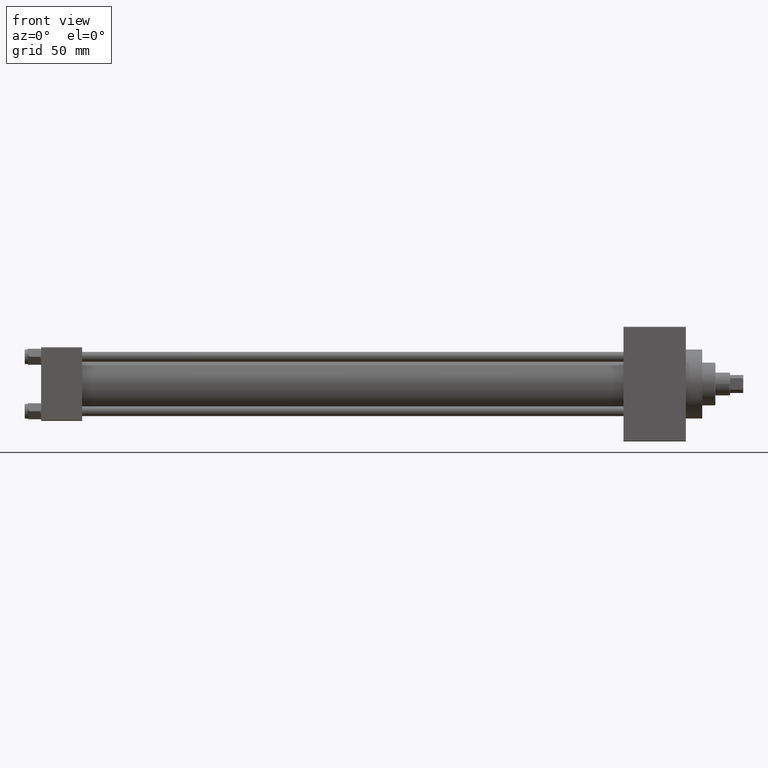
[diagram: clean part render]
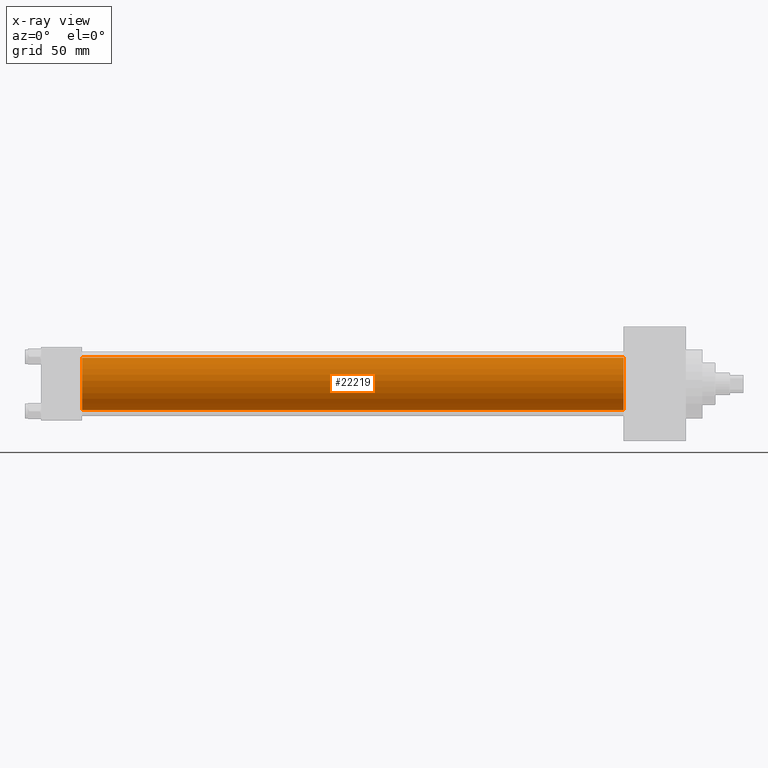
[diagram: x-ray — body ghosted, one internal face saturated and labeled with its STEP entity id]
A machine part, front view, then the same camera in x-ray: the body is ghosted and one INTERNAL B-rep face — a face not visible from any outside direction — is saturated and labeled: STEP entity #22219.
In plain terms, the highlighted cylindrical surface (edge-blend (fillet) strip) has radius 16 mm, axis along (-1, -0, -0).
Its self-contained STEP definition (entity closure, byte-faithful):
#188 = CARTESIAN_POINT ( 'NONE',  ( 25.00000000000000000, -6.426503353294456087E-16, -16.00000000000000000 ) ) ;
#2545 = CARTESIAN_POINT ( 'NONE',  ( 25.00000000000000000, -2.602085213965210642E-15, 16.00000000000000000 ) ) ;
#6779 = DIRECTION ( 'NONE',  ( 1.000000000000000000, 0.000000000000000000, 0.000000000000000000 ) ) ;
#8196 = CARTESIAN_POINT ( 'NONE',  ( 355.0000000000000568, -2.602085213965210642E-15, 16.00000000000000000 ) ) ;
#8291 = ORIENTED_EDGE ( 'NONE', *, *, #33902, .F. ) ;
#8516 = CARTESIAN_POINT ( 'NONE',  ( 355.0000000000000568, -6.426503353294456087E-16, -16.00000000000000000 ) ) ;
#9045 = DIRECTION ( 'NONE',  ( 1.000000000000000000, 0.000000000000000000, 0.000000000000000000 ) ) ;
#9282 = DIRECTION ( 'NONE',  ( 0.000000000000000000, 0.000000000000000000, -1.000000000000000000 ) ) ;
#10294 = CYLINDRICAL_SURFACE ( 'NONE', #15280, 16.00000000000000000 ) ;
#12175 = VERTEX_POINT ( 'NONE', #2545 ) ;
#13508 = ORIENTED_EDGE ( 'NONE', *, *, #15070, .T. ) ;
#14024 = EDGE_LOOP ( 'NONE', ( #22967, #13508, #39789, #8291 ) ) ;
#14123 = CARTESIAN_POINT ( 'NONE',  ( 355.0000000000000568, -2.602085213965210642E-15, 0.000000000000000000 ) ) ;
#14906 = VERTEX_POINT ( 'NONE', #8516 ) ;
#15070 = EDGE_CURVE ( 'NONE', #14906, #31252, #47021, .T. ) ;
#15280 = AXIS2_PLACEMENT_3D ( 'NONE', #14123, #28738, #43320 ) ;
#15362 = VERTEX_POINT ( 'NONE', #41868 ) ;
#20918 = EDGE_CURVE ( 'NONE', #12175, #31252, #39712, .T. ) ;
#21201 = DIRECTION ( 'NONE',  ( 0.000000000000000000, 0.000000000000000000, -1.000000000000000000 ) ) ;
#22219 = ADVANCED_FACE ( 'NONE', ( #28506 ), #10294, .F. ) ;
#22967 = ORIENTED_EDGE ( 'NONE', *, *, #34776, .T. ) ;
#28155 = CARTESIAN_POINT ( 'NONE',  ( 355.0000000000000568, -2.602085213965210642E-15, 0.000000000000000000 ) ) ;
#28506 = FACE_OUTER_BOUND ( 'NONE', #14024, .T. ) ;
#28738 = DIRECTION ( 'NONE',  ( -1.000000000000000000, -0.000000000000000000, -0.000000000000000000 ) ) ;
#29354 = CIRCLE ( 'NONE', #30908, 16.00000000000000000 ) ;
#29984 = DIRECTION ( 'NONE',  ( -1.000000000000000000, -0.000000000000000000, -0.000000000000000000 ) ) ;
#30608 = CARTESIAN_POINT ( 'NONE',  ( 25.00000000000000000, -2.602085213965210642E-15, 0.000000000000000000 ) ) ;
#30908 = AXIS2_PLACEMENT_3D ( 'NONE', #28155, #6779, #21201 ) ;
#31252 = VERTEX_POINT ( 'NONE', #188 ) ;
#32449 = CARTESIAN_POINT ( 'NONE',  ( 355.0000000000000568, -6.426503353294456087E-16, -16.00000000000000000 ) ) ;
#33600 = LINE ( 'NONE', #8196, #33911 ) ;
#33902 = EDGE_CURVE ( 'NONE', #15362, #12175, #33600, .T. ) ;
#33911 = VECTOR ( 'NONE', #37657, 1000.000000000000000 ) ;
#34776 = EDGE_CURVE ( 'NONE', #15362, #14906, #29354, .T. ) ;
#35720 = VECTOR ( 'NONE', #29984, 1000.000000000000000 ) ;
#37657 = DIRECTION ( 'NONE',  ( -1.000000000000000000, -0.000000000000000000, -0.000000000000000000 ) ) ;
#39712 = CIRCLE ( 'NONE', #42794, 16.00000000000000000 ) ;
#39789 = ORIENTED_EDGE ( 'NONE', *, *, #20918, .F. ) ;
#41868 = CARTESIAN_POINT ( 'NONE',  ( 355.0000000000000568, -2.602085213965210642E-15, 16.00000000000000000 ) ) ;
#42794 = AXIS2_PLACEMENT_3D ( 'NONE', #30608, #9045, #9282 ) ;
#43320 = DIRECTION ( 'NONE',  ( 0.000000000000000000, 0.000000000000000000, 1.000000000000000000 ) ) ;
#47021 = LINE ( 'NONE', #32449, #35720 ) ;